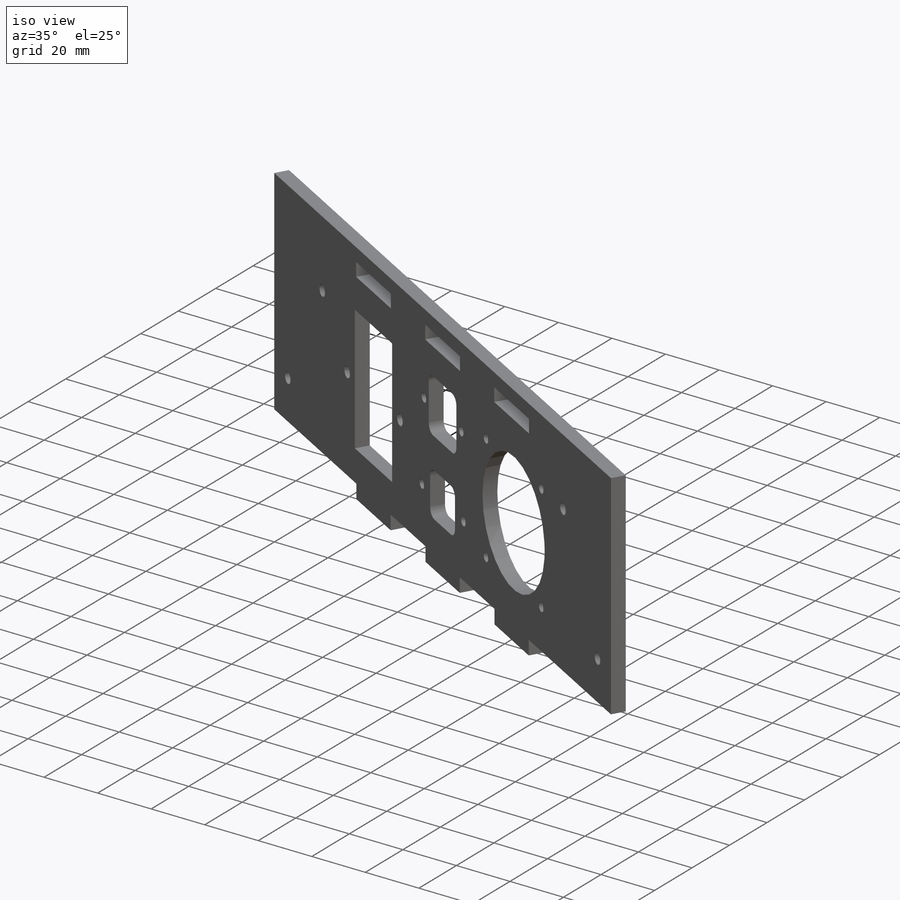
[diagram: iso view]
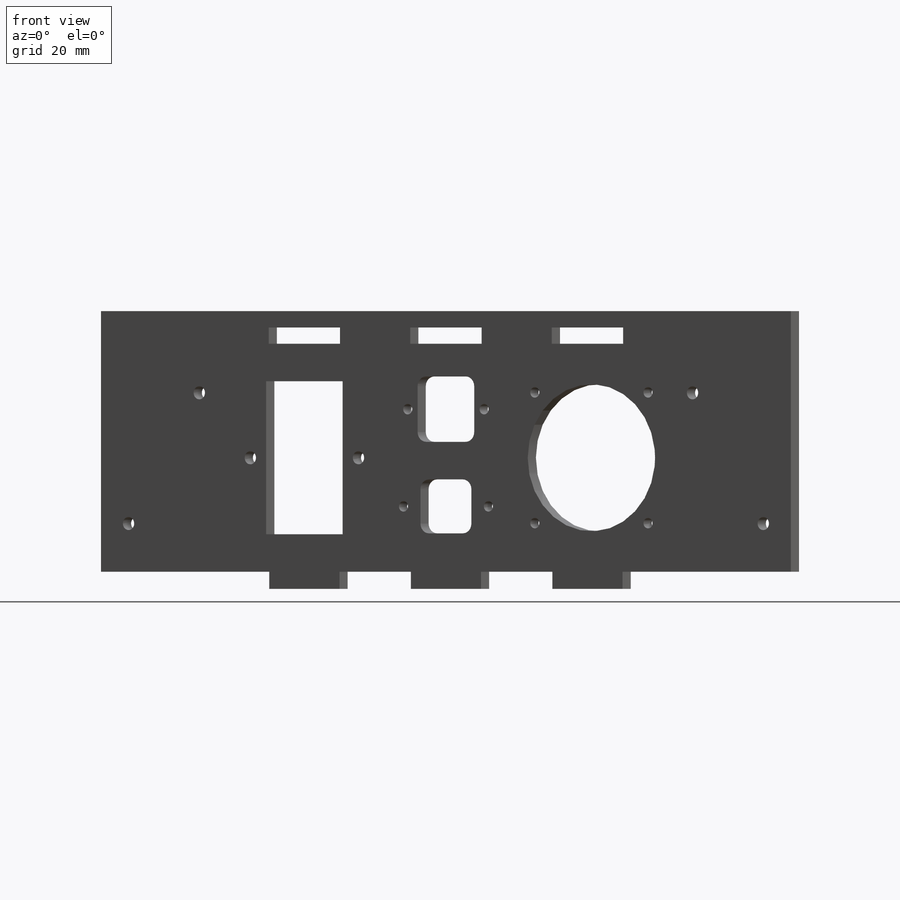
[diagram: front view]
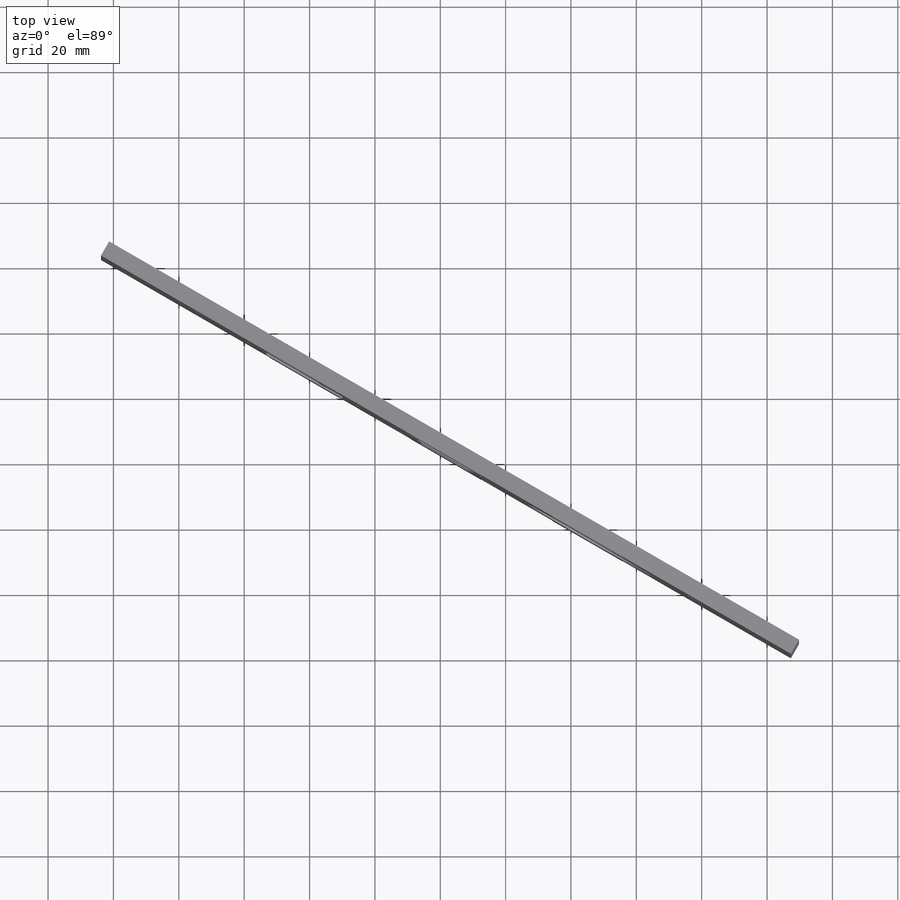
[diagram: top view]
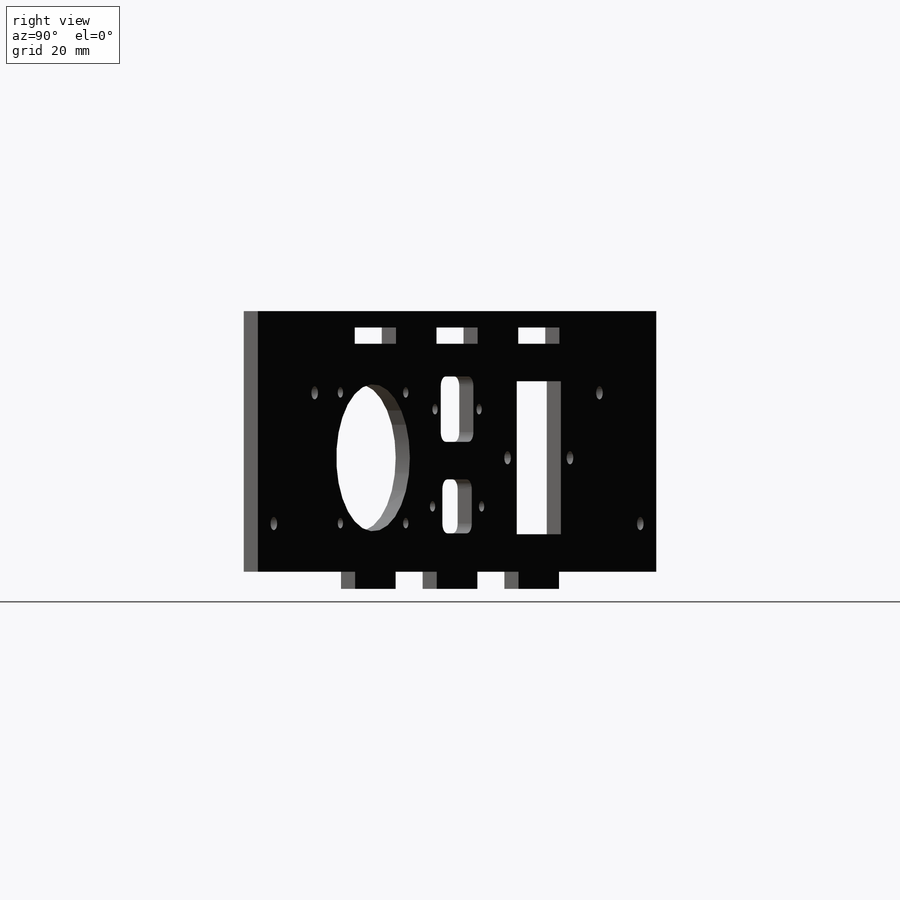
[diagram: right view]
SOLIDWORKS PART (.sldprt)
format: sldprt  version: not decoded by parser v0  size: 382,976 bytes
history: native  units: mm
features: sketch x5, cut_extrude x4, material x1, extrude x1 (+12 scaffold rows collapsed)
feature tree (23):
  scaffold x12  (default folders/planes/origin — collapsed)
  material  "Material <not specified>"
  sketch  "Sketch1"  dims[D1=5.0mm]
  extrude  "Boss-Extrude1"  [1 undecoded]
  sketch  "Sketch2"  dims[D1=25.2mm D2=5.0mm D3=5.0mm D4=24.8mm]
  cut_extrude  "Cut-Extrude1"  [1 undecoded]
  sketch  "Sketch3"  dims[c1.D2=3.0mm c1.D8=3.2mm c1.D9=3.0mm c1.D3=0.0mm c1.D4=30.0mm c1.D5=12.0mm c1.D6=10.5mm c1.D7=27.0mm c1.D10=10.5mm c1.D11=12.0mm c1.D12=30.0mm c1.D13=18.0mm c2.D11=18.0mm c2.D13=20.0mm c2.D10=16.5mm c2.D5=20.0mm c2.D6=20.0mm c2.D1=3.0mm]
  cut_extrude  "Cut-Extrude2"  [1 undecoded]
  sketch  "Sketch4"  dims[D5=4.0mm D1=46.8mm D2=27.0mm D3=50.0mm D4=5.6mm]
  cut_extrude  "Cut-Extrude3"  [1 undecoded]
  sketch  "Sketch5"  dims[D1=45.0mm D5=3.2mm D2=40.0mm D3=40.0mm D4=39.0mm]
  cut_extrude  "Cut-Extrude4"  [1 undecoded]
decode coverage: 5 of 10 modeling features carry decoded parameters
note: 5 parameter values undecoded
summary: no parameter record found for 5 features
note: suppression state not decoded; provenance and decode notes live in map.json
